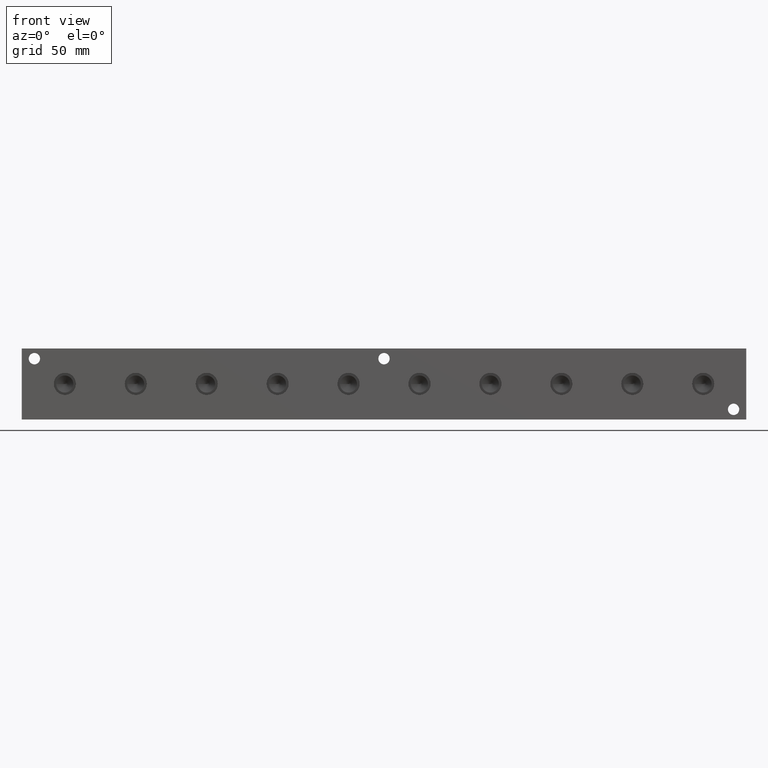
[diagram: clean part render]
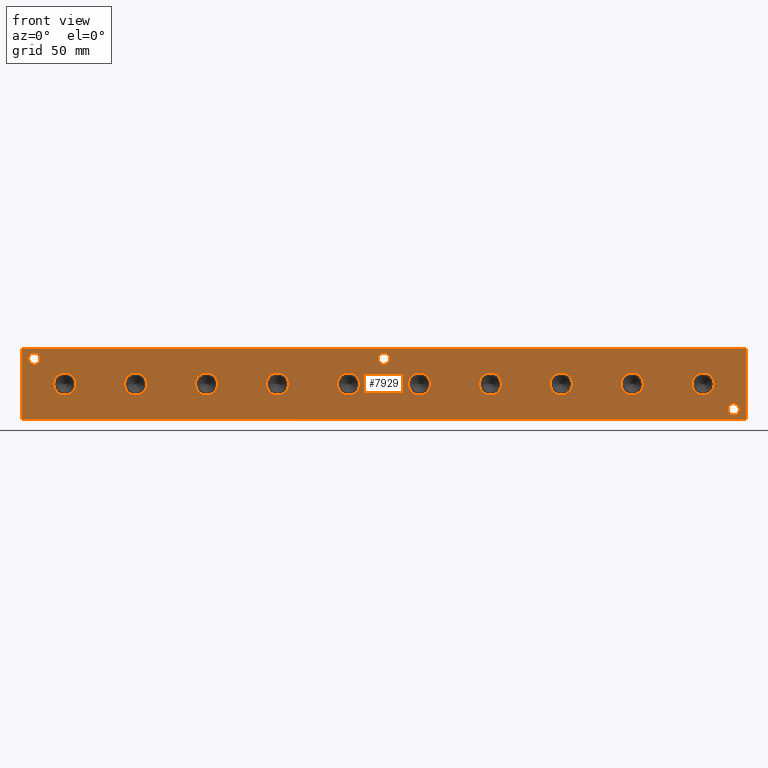
[diagram: same view with one face highlighted and labeled with its STEP entity id]
A machine part, front view. The second image highlights one B-rep face of the part: STEP entity #7929.
In plain terms, the highlighted planar face has unit normal (0, -1, 0).
Its self-contained STEP definition (entity closure, byte-faithful):
#130=CIRCLE('',#8189,3.5687);
#131=CIRCLE('',#8190,3.5687);
#133=CIRCLE('',#8199,3.5687);
#134=CIRCLE('',#8200,3.5687);
#136=CIRCLE('',#8208,3.5687);
#137=CIRCLE('',#8209,3.5687);
#144=CIRCLE('',#8226,6.9342);
#145=CIRCLE('',#8227,6.9342);
#151=CIRCLE('',#8237,6.9342);
#152=CIRCLE('',#8238,6.9342);
#158=CIRCLE('',#8248,6.9342);
#159=CIRCLE('',#8249,6.9342);
#165=CIRCLE('',#8259,6.9342);
#166=CIRCLE('',#8260,6.9342);
#172=CIRCLE('',#8270,6.9342);
#173=CIRCLE('',#8271,6.9342);
#179=CIRCLE('',#8281,6.9342);
#180=CIRCLE('',#8282,6.9342);
#186=CIRCLE('',#8292,6.9342);
#187=CIRCLE('',#8293,6.9342);
#193=CIRCLE('',#8303,6.9342);
#194=CIRCLE('',#8304,6.9342);
#200=CIRCLE('',#8314,6.9342);
#201=CIRCLE('',#8315,6.9342);
#207=CIRCLE('',#8325,6.9342);
#208=CIRCLE('',#8326,6.9342);
#345=FACE_BOUND('',#1484,.T.);
#346=FACE_BOUND('',#1485,.T.);
#347=FACE_BOUND('',#1486,.T.);
#348=FACE_BOUND('',#1487,.T.);
#349=FACE_BOUND('',#1488,.T.);
#350=FACE_BOUND('',#1489,.T.);
#351=FACE_BOUND('',#1490,.T.);
#352=FACE_BOUND('',#1491,.T.);
#353=FACE_BOUND('',#1492,.T.);
#354=FACE_BOUND('',#1493,.T.);
#355=FACE_BOUND('',#1494,.T.);
#356=FACE_BOUND('',#1495,.T.);
#357=FACE_BOUND('',#1496,.T.);
#602=PLANE('',#8449);
#1008=FACE_OUTER_BOUND('',#1483,.T.);
#1483=EDGE_LOOP('',(#7111,#7112,#7113,#7114));
#1484=EDGE_LOOP('',(#7115,#7116));
#1485=EDGE_LOOP('',(#7117,#7118));
#1486=EDGE_LOOP('',(#7119,#7120));
#1487=EDGE_LOOP('',(#7121,#7122));
#1488=EDGE_LOOP('',(#7123,#7124));
#1489=EDGE_LOOP('',(#7125,#7126));
#1490=EDGE_LOOP('',(#7127,#7128));
#1491=EDGE_LOOP('',(#7129,#7130));
#1492=EDGE_LOOP('',(#7131,#7132));
#1493=EDGE_LOOP('',(#7133,#7134));
#1494=EDGE_LOOP('',(#7135,#7136));
#1495=EDGE_LOOP('',(#7137,#7138));
#1496=EDGE_LOOP('',(#7139,#7140));
#1770=LINE('',#12043,#2505);
#2230=LINE('',#13523,#2965);
#2235=LINE('',#13532,#2970);
#2236=LINE('',#13534,#2971);
#2505=VECTOR('',#8872,10.);
#2965=VECTOR('',#10184,10.);
#2970=VECTOR('',#10193,10.);
#2971=VECTOR('',#10196,10.);
#3420=VERTEX_POINT('',#12041);
#3421=VERTEX_POINT('',#12042);
#3712=VERTEX_POINT('',#13010);
#3713=VERTEX_POINT('',#13011);
#3717=VERTEX_POINT('',#13028);
#3718=VERTEX_POINT('',#13029);
#3722=VERTEX_POINT('',#13044);
#3723=VERTEX_POINT('',#13045);
#3733=VERTEX_POINT('',#13078);
#3734=VERTEX_POINT('',#13079);
#3741=VERTEX_POINT('',#13100);
#3742=VERTEX_POINT('',#13101);
#3749=VERTEX_POINT('',#13122);
#3750=VERTEX_POINT('',#13123);
#3757=VERTEX_POINT('',#13144);
#3758=VERTEX_POINT('',#13145);
#3765=VERTEX_POINT('',#13166);
#3766=VERTEX_POINT('',#13167);
#3773=VERTEX_POINT('',#13188);
#3774=VERTEX_POINT('',#13189);
#3781=VERTEX_POINT('',#13210);
#3782=VERTEX_POINT('',#13211);
#3789=VERTEX_POINT('',#13232);
#3790=VERTEX_POINT('',#13233);
#3797=VERTEX_POINT('',#13254);
#3798=VERTEX_POINT('',#13255);
#3805=VERTEX_POINT('',#13276);
#3806=VERTEX_POINT('',#13277);
#3887=VERTEX_POINT('',#13521);
#3889=VERTEX_POINT('',#13530);
#4310=EDGE_CURVE('',#3420,#3421,#1770,.T.);
#4733=EDGE_CURVE('',#3712,#3713,#130,.T.);
#4734=EDGE_CURVE('',#3713,#3712,#131,.T.);
#4743=EDGE_CURVE('',#3717,#3718,#133,.T.);
#4744=EDGE_CURVE('',#3718,#3717,#134,.T.);
#4752=EDGE_CURVE('',#3722,#3723,#136,.T.);
#4753=EDGE_CURVE('',#3723,#3722,#137,.T.);
#4769=EDGE_CURVE('',#3733,#3734,#144,.T.);
#4770=EDGE_CURVE('',#3734,#3733,#145,.T.);
#4779=EDGE_CURVE('',#3741,#3742,#151,.T.);
#4780=EDGE_CURVE('',#3742,#3741,#152,.T.);
#4789=EDGE_CURVE('',#3749,#3750,#158,.T.);
#4790=EDGE_CURVE('',#3750,#3749,#159,.T.);
#4799=EDGE_CURVE('',#3757,#3758,#165,.T.);
#4800=EDGE_CURVE('',#3758,#3757,#166,.T.);
#4809=EDGE_CURVE('',#3765,#3766,#172,.T.);
#4810=EDGE_CURVE('',#3766,#3765,#173,.T.);
#4819=EDGE_CURVE('',#3773,#3774,#179,.T.);
#4820=EDGE_CURVE('',#3774,#3773,#180,.T.);
#4829=EDGE_CURVE('',#3781,#3782,#186,.T.);
#4830=EDGE_CURVE('',#3782,#3781,#187,.T.);
#4839=EDGE_CURVE('',#3789,#3790,#193,.T.);
#4840=EDGE_CURVE('',#3790,#3789,#194,.T.);
#4849=EDGE_CURVE('',#3797,#3798,#200,.T.);
#4850=EDGE_CURVE('',#3798,#3797,#201,.T.);
#4859=EDGE_CURVE('',#3805,#3806,#207,.T.);
#4860=EDGE_CURVE('',#3806,#3805,#208,.T.);
#4970=EDGE_CURVE('',#3887,#3420,#2230,.T.);
#4975=EDGE_CURVE('',#3889,#3421,#2235,.T.);
#4976=EDGE_CURVE('',#3887,#3889,#2236,.T.);
#7111=ORIENTED_EDGE('',*,*,#4976,.T.);
#7112=ORIENTED_EDGE('',*,*,#4975,.T.);
#7113=ORIENTED_EDGE('',*,*,#4310,.F.);
#7114=ORIENTED_EDGE('',*,*,#4970,.F.);
#7115=ORIENTED_EDGE('',*,*,#4733,.T.);
#7116=ORIENTED_EDGE('',*,*,#4734,.T.);
#7117=ORIENTED_EDGE('',*,*,#4743,.T.);
#7118=ORIENTED_EDGE('',*,*,#4744,.T.);
#7119=ORIENTED_EDGE('',*,*,#4752,.T.);
#7120=ORIENTED_EDGE('',*,*,#4753,.T.);
#7121=ORIENTED_EDGE('',*,*,#4769,.T.);
#7122=ORIENTED_EDGE('',*,*,#4770,.T.);
#7123=ORIENTED_EDGE('',*,*,#4779,.T.);
#7124=ORIENTED_EDGE('',*,*,#4780,.T.);
#7125=ORIENTED_EDGE('',*,*,#4789,.T.);
#7126=ORIENTED_EDGE('',*,*,#4790,.T.);
#7127=ORIENTED_EDGE('',*,*,#4799,.T.);
#7128=ORIENTED_EDGE('',*,*,#4800,.T.);
#7129=ORIENTED_EDGE('',*,*,#4809,.T.);
#7130=ORIENTED_EDGE('',*,*,#4810,.T.);
#7131=ORIENTED_EDGE('',*,*,#4819,.T.);
#7132=ORIENTED_EDGE('',*,*,#4820,.T.);
#7133=ORIENTED_EDGE('',*,*,#4829,.T.);
#7134=ORIENTED_EDGE('',*,*,#4830,.T.);
#7135=ORIENTED_EDGE('',*,*,#4839,.T.);
#7136=ORIENTED_EDGE('',*,*,#4840,.T.);
#7137=ORIENTED_EDGE('',*,*,#4849,.T.);
#7138=ORIENTED_EDGE('',*,*,#4850,.T.);
#7139=ORIENTED_EDGE('',*,*,#4859,.T.);
#7140=ORIENTED_EDGE('',*,*,#4860,.T.);
#7929=ADVANCED_FACE('',(#1008,#345,#346,#347,#348,#349,#350,#351,#352,#353,
#354,#355,#356,#357),#602,.T.);
#8189=AXIS2_PLACEMENT_3D('',#13012,#9589,#9590);
#8190=AXIS2_PLACEMENT_3D('',#13013,#9591,#9592);
#8199=AXIS2_PLACEMENT_3D('',#13030,#9612,#9613);
#8200=AXIS2_PLACEMENT_3D('',#13031,#9614,#9615);
#8208=AXIS2_PLACEMENT_3D('',#13046,#9632,#9633);
#8209=AXIS2_PLACEMENT_3D('',#13047,#9634,#9635);
#8226=AXIS2_PLACEMENT_3D('',#13080,#9673,#9674);
#8227=AXIS2_PLACEMENT_3D('',#13081,#9675,#9676);
#8237=AXIS2_PLACEMENT_3D('',#13102,#9698,#9699);
#8238=AXIS2_PLACEMENT_3D('',#13103,#9700,#9701);
#8248=AXIS2_PLACEMENT_3D('',#13124,#9723,#9724);
#8249=AXIS2_PLACEMENT_3D('',#13125,#9725,#9726);
#8259=AXIS2_PLACEMENT_3D('',#13146,#9748,#9749);
#8260=AXIS2_PLACEMENT_3D('',#13147,#9750,#9751);
#8270=AXIS2_PLACEMENT_3D('',#13168,#9773,#9774);
#8271=AXIS2_PLACEMENT_3D('',#13169,#9775,#9776);
#8281=AXIS2_PLACEMENT_3D('',#13190,#9798,#9799);
#8282=AXIS2_PLACEMENT_3D('',#13191,#9800,#9801);
#8292=AXIS2_PLACEMENT_3D('',#13212,#9823,#9824);
#8293=AXIS2_PLACEMENT_3D('',#13213,#9825,#9826);
#8303=AXIS2_PLACEMENT_3D('',#13234,#9848,#9849);
#8304=AXIS2_PLACEMENT_3D('',#13235,#9850,#9851);
#8314=AXIS2_PLACEMENT_3D('',#13256,#9873,#9874);
#8315=AXIS2_PLACEMENT_3D('',#13257,#9875,#9876);
#8325=AXIS2_PLACEMENT_3D('',#13278,#9898,#9899);
#8326=AXIS2_PLACEMENT_3D('',#13279,#9900,#9901);
#8449=AXIS2_PLACEMENT_3D('',#13533,#10194,#10195);
#8872=DIRECTION('',(1.,0.,0.));
#9589=DIRECTION('center_axis',(0.,1.,0.));
#9590=DIRECTION('ref_axis',(1.,0.,0.));
#9591=DIRECTION('center_axis',(0.,1.,0.));
#9592=DIRECTION('ref_axis',(1.,0.,0.));
#9612=DIRECTION('center_axis',(0.,1.,0.));
#9613=DIRECTION('ref_axis',(1.,0.,0.));
#9614=DIRECTION('center_axis',(0.,1.,0.));
#9615=DIRECTION('ref_axis',(1.,0.,0.));
#9632=DIRECTION('center_axis',(0.,1.,0.));
#9633=DIRECTION('ref_axis',(1.,0.,0.));
#9634=DIRECTION('center_axis',(0.,1.,0.));
#9635=DIRECTION('ref_axis',(1.,0.,0.));
#9673=DIRECTION('center_axis',(0.,1.,0.));
#9674=DIRECTION('ref_axis',(1.,0.,0.));
#9675=DIRECTION('center_axis',(0.,1.,0.));
#9676=DIRECTION('ref_axis',(1.,0.,0.));
#9698=DIRECTION('center_axis',(0.,1.,0.));
#9699=DIRECTION('ref_axis',(1.,0.,0.));
#9700=DIRECTION('center_axis',(0.,1.,0.));
#9701=DIRECTION('ref_axis',(1.,0.,0.));
#9723=DIRECTION('center_axis',(0.,1.,0.));
#9724=DIRECTION('ref_axis',(1.,0.,0.));
#9725=DIRECTION('center_axis',(0.,1.,0.));
#9726=DIRECTION('ref_axis',(1.,0.,0.));
#9748=DIRECTION('center_axis',(0.,1.,0.));
#9749=DIRECTION('ref_axis',(1.,0.,0.));
#9750=DIRECTION('center_axis',(0.,1.,0.));
#9751=DIRECTION('ref_axis',(1.,0.,0.));
#9773=DIRECTION('center_axis',(0.,1.,0.));
#9774=DIRECTION('ref_axis',(1.,0.,0.));
#9775=DIRECTION('center_axis',(0.,1.,0.));
#9776=DIRECTION('ref_axis',(1.,0.,0.));
#9798=DIRECTION('center_axis',(0.,1.,0.));
#9799=DIRECTION('ref_axis',(1.,0.,0.));
#9800=DIRECTION('center_axis',(0.,1.,0.));
#9801=DIRECTION('ref_axis',(1.,0.,0.));
#9823=DIRECTION('center_axis',(0.,1.,0.));
#9824=DIRECTION('ref_axis',(1.,0.,0.));
#9825=DIRECTION('center_axis',(0.,1.,0.));
#9826=DIRECTION('ref_axis',(1.,0.,0.));
#9848=DIRECTION('center_axis',(0.,1.,0.));
#9849=DIRECTION('ref_axis',(1.,0.,0.));
#9850=DIRECTION('center_axis',(0.,1.,0.));
#9851=DIRECTION('ref_axis',(1.,0.,0.));
#9873=DIRECTION('center_axis',(0.,1.,0.));
#9874=DIRECTION('ref_axis',(1.,0.,0.));
#9875=DIRECTION('center_axis',(0.,1.,0.));
#9876=DIRECTION('ref_axis',(1.,0.,0.));
#9898=DIRECTION('center_axis',(0.,1.,0.));
#9899=DIRECTION('ref_axis',(1.,0.,0.));
#9900=DIRECTION('center_axis',(0.,1.,0.));
#9901=DIRECTION('ref_axis',(1.,0.,0.));
#10184=DIRECTION('',(0.,0.,1.));
#10193=DIRECTION('',(0.,0.,1.));
#10194=DIRECTION('center_axis',(0.,-1.,0.));
#10195=DIRECTION('ref_axis',(1.,0.,0.));
#10196=DIRECTION('',(1.,0.,0.));
#12041=CARTESIAN_POINT('',(0.,0.,44.45));
#12042=CARTESIAN_POINT('',(454.025,0.,44.45));
#12043=CARTESIAN_POINT('',(0.,0.,44.45));
#13010=CARTESIAN_POINT('',(449.6435,0.,6.35));
#13011=CARTESIAN_POINT('',(442.5061,7.105427357601E-14,6.35));
#13012=CARTESIAN_POINT('Origin',(446.0748,0.,6.35));
#13013=CARTESIAN_POINT('Origin',(446.0748,0.,6.35));
#13028=CARTESIAN_POINT('',(11.4935,0.,38.1));
#13029=CARTESIAN_POINT('',(4.3561,7.105427357601E-14,38.1));
#13030=CARTESIAN_POINT('Origin',(7.9248,0.,38.1));
#13031=CARTESIAN_POINT('Origin',(7.9248,0.,38.1));
#13044=CARTESIAN_POINT('',(230.5939,0.,38.1));
#13045=CARTESIAN_POINT('',(223.4565,7.105427357601E-14,38.1));
#13046=CARTESIAN_POINT('Origin',(227.0252,0.,38.1));
#13047=CARTESIAN_POINT('Origin',(227.0252,0.,38.1));
#13078=CARTESIAN_POINT('',(389.509,0.,22.225));
#13079=CARTESIAN_POINT('',(375.6406,0.,22.225));
#13080=CARTESIAN_POINT('Origin',(382.5748,0.,22.225));
#13081=CARTESIAN_POINT('Origin',(382.5748,0.,22.225));
#13100=CARTESIAN_POINT('',(300.609,0.,22.225));
#13101=CARTESIAN_POINT('',(286.7406,0.,22.225));
#13102=CARTESIAN_POINT('Origin',(293.6748,0.,22.225));
#13103=CARTESIAN_POINT('Origin',(293.6748,0.,22.225));
#13122=CARTESIAN_POINT('',(211.709,0.,22.225));
#13123=CARTESIAN_POINT('',(197.8406,0.,22.225));
#13124=CARTESIAN_POINT('Origin',(204.7748,0.,22.225));
#13125=CARTESIAN_POINT('Origin',(204.7748,0.,22.225));
#13144=CARTESIAN_POINT('',(122.809,0.,22.225));
#13145=CARTESIAN_POINT('',(108.9406,0.,22.225));
#13146=CARTESIAN_POINT('Origin',(115.8748,0.,22.225));
#13147=CARTESIAN_POINT('Origin',(115.8748,0.,22.225));
#13166=CARTESIAN_POINT('',(33.909,0.,22.225));
#13167=CARTESIAN_POINT('',(20.0406,0.,22.225));
#13168=CARTESIAN_POINT('Origin',(26.9748,0.,22.225));
#13169=CARTESIAN_POINT('Origin',(26.9748,0.,22.225));
#13188=CARTESIAN_POINT('',(78.359,0.,22.225));
#13189=CARTESIAN_POINT('',(64.4906,0.,22.225));
#13190=CARTESIAN_POINT('Origin',(71.4248,0.,22.225));
#13191=CARTESIAN_POINT('Origin',(71.4248,0.,22.225));
#13210=CARTESIAN_POINT('',(167.259,0.,22.225));
#13211=CARTESIAN_POINT('',(153.3906,0.,22.225));
#13212=CARTESIAN_POINT('Origin',(160.3248,0.,22.225));
#13213=CARTESIAN_POINT('Origin',(160.3248,0.,22.225));
#13232=CARTESIAN_POINT('',(256.159,0.,22.225));
#13233=CARTESIAN_POINT('',(242.2906,0.,22.225));
#13234=CARTESIAN_POINT('Origin',(249.2248,0.,22.225));
#13235=CARTESIAN_POINT('Origin',(249.2248,0.,22.225));
#13254=CARTESIAN_POINT('',(345.059,0.,22.225));
#13255=CARTESIAN_POINT('',(331.1906,0.,22.225));
#13256=CARTESIAN_POINT('Origin',(338.1248,0.,22.225));
#13257=CARTESIAN_POINT('Origin',(338.1248,0.,22.225));
#13276=CARTESIAN_POINT('',(433.959,0.,22.225));
#13277=CARTESIAN_POINT('',(420.0906,0.,22.225));
#13278=CARTESIAN_POINT('Origin',(427.0248,0.,22.225));
#13279=CARTESIAN_POINT('Origin',(427.0248,0.,22.225));
#13521=CARTESIAN_POINT('',(0.,0.,0.));
#13523=CARTESIAN_POINT('',(0.,0.,0.));
#13530=CARTESIAN_POINT('',(454.025,0.,0.));
#13532=CARTESIAN_POINT('',(454.025,0.,0.));
#13533=CARTESIAN_POINT('Origin',(0.,0.,0.));
#13534=CARTESIAN_POINT('',(0.,0.,0.));